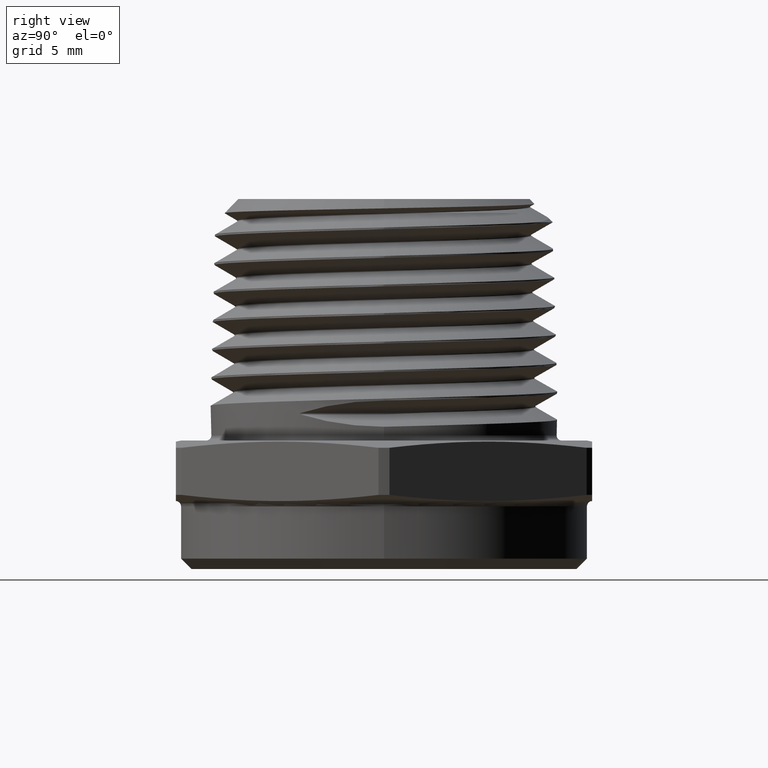
[diagram: clean part render]
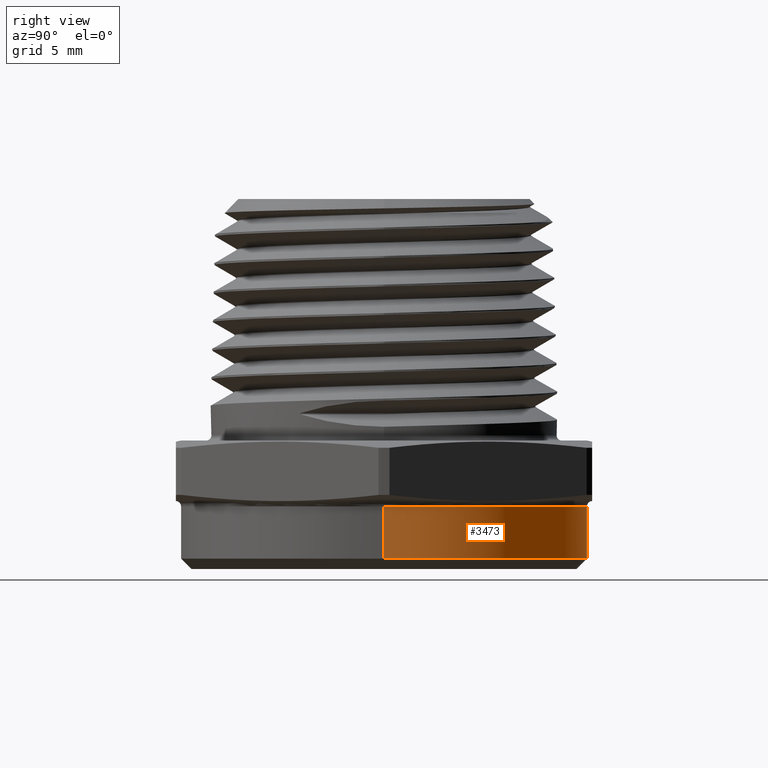
[diagram: same view with one face highlighted and labeled with its STEP entity id]
A machine part, right view. The second image highlights one B-rep face of the part: STEP entity #3473.
In plain terms, the highlighted cylindrical surface (partial cylindrical patch) has radius 10.033 mm, axis along (0, 0, 1).
Its self-contained STEP definition (entity closure, byte-faithful):
#565 = DIRECTION ( 'NONE',  ( -0.0000000000000000000, -0.0000000000000000000, 1.000000000000000000 ) ) ;
#569 = DIRECTION ( 'NONE',  ( -0.0000000000000000000, -0.0000000000000000000, 1.000000000000000000 ) ) ;
#573 = CARTESIAN_POINT ( 'NONE',  ( -0.3950000000000000700, 4.837354856632045600E-017, -0.1300000000000000000 ) ) ;
#577 = CARTESIAN_POINT ( 'NONE',  ( 0.3950000000000000700, 0.0000000000000000000, -0.1300000000000000000 ) ) ;
#579 = CARTESIAN_POINT ( 'NONE',  ( 0.0000000000000000000, 0.0000000000000000000, -0.008097840331950215800 ) ) ;
#580 = DIRECTION ( 'NONE',  ( -6.123233995736756200E-017, -0.0000000000000000000, -1.000000000000000000 ) ) ;
#581 = DIRECTION ( 'NONE',  ( -1.000000000000000000, 0.0000000000000000000, 6.213657422298065900E-017 ) ) ;
#1906 = CARTESIAN_POINT ( 'NONE',  ( 0.0000000000000000000, 0.0000000000000000000, -0.1100000000000007500 ) ) ;
#1907 = DIRECTION ( 'NONE',  ( 0.0000000000000000000, 0.0000000000000000000, 1.000000000000000000 ) ) ;
#1908 = DIRECTION ( 'NONE',  ( -1.000000000000000000, 0.0000000000000000000, 0.0000000000000000000 ) ) ;
#2896 = CARTESIAN_POINT ( 'NONE',  ( -0.3950000000000000700, 4.837354856632045600E-017, -0.008097840331950191500 ) ) ;
#2941 = CARTESIAN_POINT ( 'NONE',  ( 0.3950000000000000700, 0.0000000000000000000, -0.1100000000000007500 ) ) ;
#2942 = CARTESIAN_POINT ( 'NONE',  ( 0.3950000000000000700, 0.0000000000000000000, -0.008097840331950240100 ) ) ;
#2945 = CARTESIAN_POINT ( 'NONE',  ( -0.3950000000000000700, 4.837354856632045600E-017, -0.1100000000000007500 ) ) ;
#3473 = ADVANCED_FACE ( 'NONE', ( #4491 ), #4489, .T. ) ;
#3526 = AXIS2_PLACEMENT_3D ( 'NONE', #579, #580, #581 ) ;
#3552 = AXIS2_PLACEMENT_3D ( 'NONE', #1906, #1907, #1908 ) ;
#3944 = EDGE_CURVE ( 'NONE', #4455, #4405, #4554, .T. ) ;
#3945 = EDGE_CURVE ( 'NONE', #4405, #4452, #4556, .T. ) ;
#3946 = EDGE_CURVE ( 'NONE', #4451, #4452, #4559, .T. ) ;
#4026 = AXIS2_PLACEMENT_3D ( 'NONE', #4124, #4125, #4123 ) ;
#4043 = EDGE_CURVE ( 'NONE', #4451, #4455, #4633, .T. ) ;
#4123 = DIRECTION ( 'NONE',  ( 1.000000000000000000, 0.0000000000000000000, 0.0000000000000000000 ) ) ;
#4124 = CARTESIAN_POINT ( 'NONE',  ( 0.0000000000000000000, 0.0000000000000000000, -0.1300000000000000000 ) ) ;
#4125 = DIRECTION ( 'NONE',  ( -0.0000000000000000000, -0.0000000000000000000, 1.000000000000000000 ) ) ;
#4231 = ORIENTED_EDGE ( 'NONE', *, *, #4043, .T. ) ;
#4232 = ORIENTED_EDGE ( 'NONE', *, *, #3944, .T. ) ;
#4233 = ORIENTED_EDGE ( 'NONE', *, *, #3945, .T. ) ;
#4234 = ORIENTED_EDGE ( 'NONE', *, *, #3946, .F. ) ;
#4405 = VERTEX_POINT ( 'NONE', #2896 ) ;
#4451 = VERTEX_POINT ( 'NONE', #2941 ) ;
#4452 = VERTEX_POINT ( 'NONE', #2942 ) ;
#4455 = VERTEX_POINT ( 'NONE', #2945 ) ;
#4489 = CYLINDRICAL_SURFACE ( 'NONE', #4026, 0.3950000000000000700 ) ;
#4491 = FACE_OUTER_BOUND ( 'NONE', #5220, .T. ) ;
#4554 = LINE ( 'NONE', #573, #4558 ) ;
#4556 = CIRCLE ( 'NONE', #3526, 0.3950000000000000700 ) ;
#4558 = VECTOR ( 'NONE', #569, 39.37007874015748100 ) ;
#4559 = LINE ( 'NONE', #577, #4561 ) ;
#4561 = VECTOR ( 'NONE', #565, 39.37007874015748100 ) ;
#4633 = CIRCLE ( 'NONE', #3552, 0.3950000000000000700 ) ;
#5220 = EDGE_LOOP ( 'NONE', ( #4231, #4232, #4233, #4234 ) ) ;